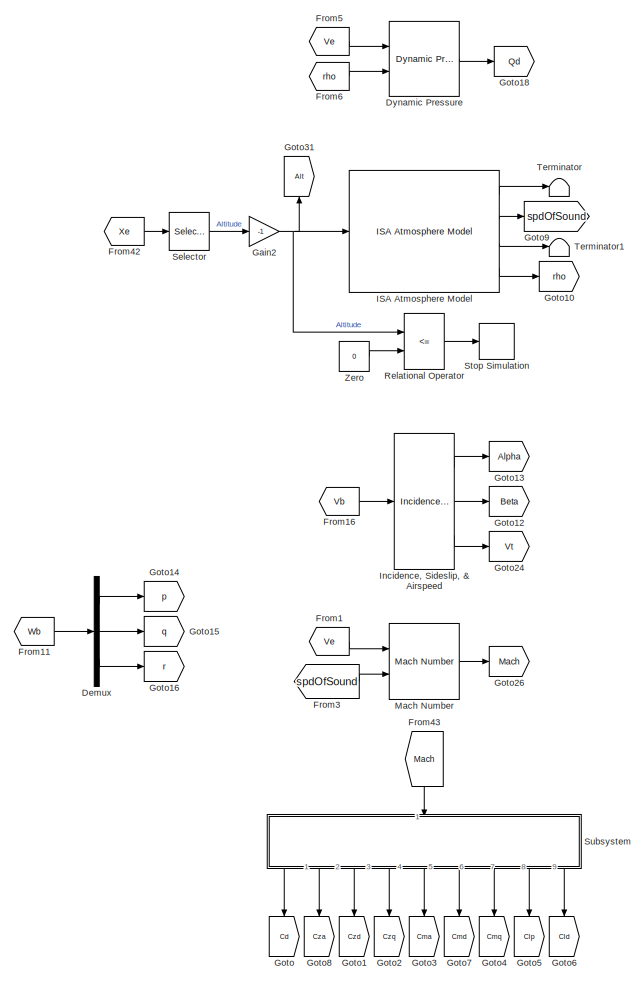
[diagram: root canvas - part 1/3, middle right region]
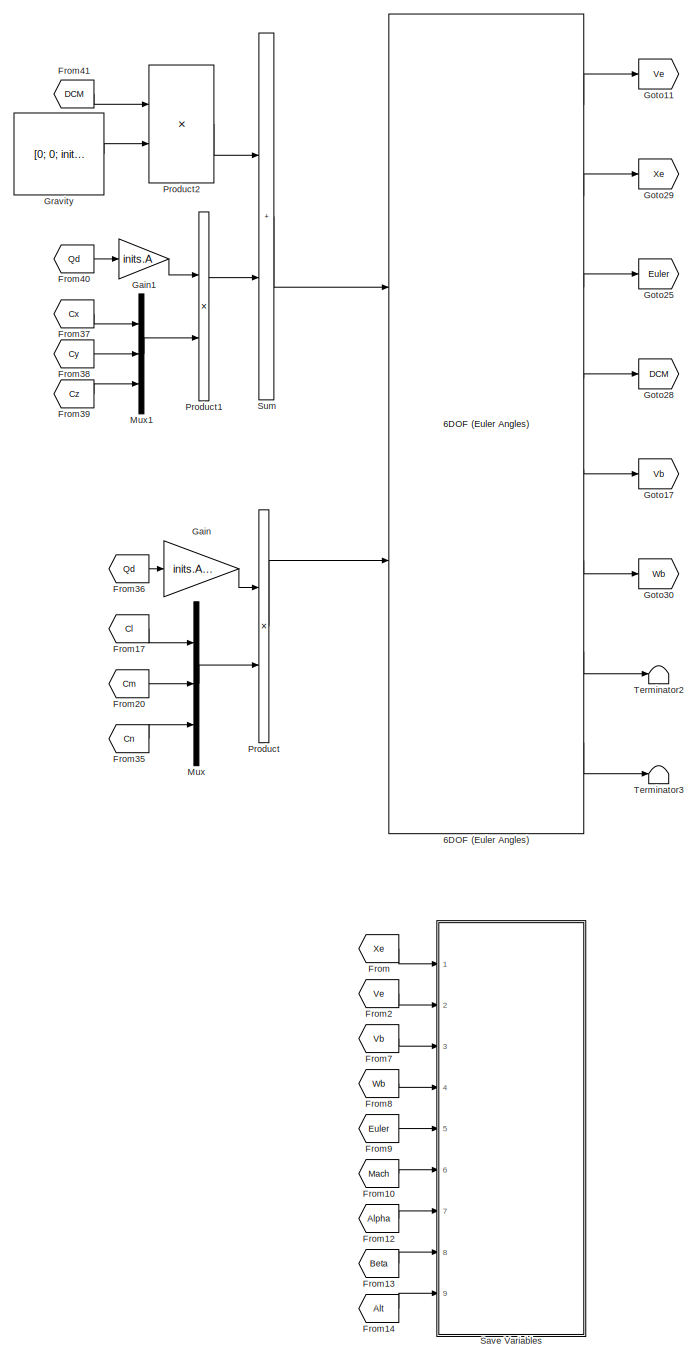
[diagram: root canvas - part 2/3, center side, full height]
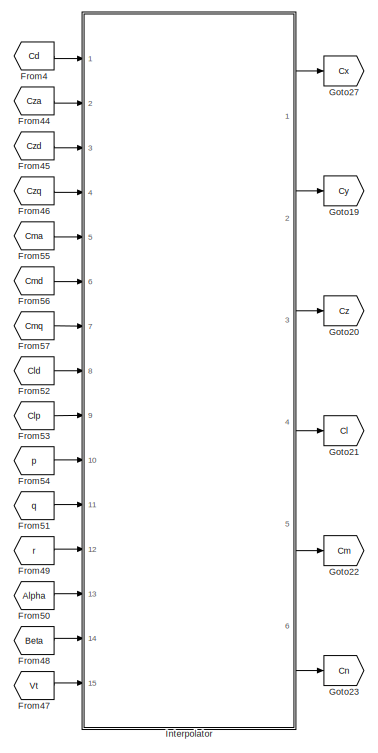
[diagram: root canvas - part 3/3, middle left region]
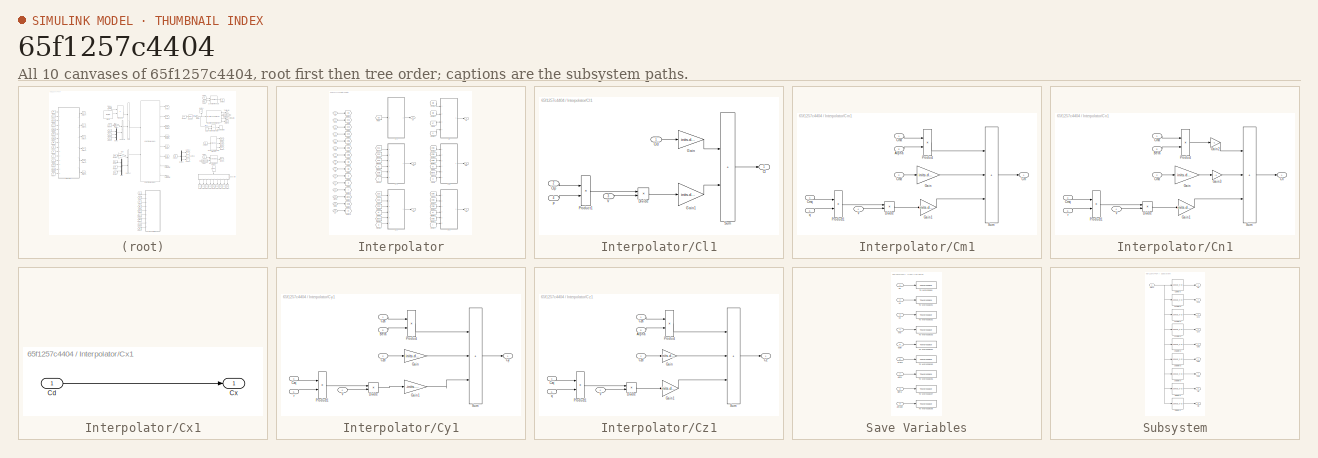
[diagram: thumbnail index - all 10 canvases of the model, root first then tree order]
MODEL slx_65f1257c4404
KIND model
CONFIG AbsTol = auto
CONFIG EnableMultiTasking = off
CONFIG FixedStep = inits.dt
CONFIG MaxStep = auto
CONFIG MinStep = auto
CONFIG RelTol = 1e-3
CONFIG SampleTimeConstraint = Unconstrained
CONFIG SolverName = FixedStepAuto
CONFIG StartTime = 0
CONFIG StopTime = inf
BLOCK [Reference] 6DOF (Euler Angles)  REF=shared6dof/6DOF (Euler Angles)
  Ports = [2, 8]
  SourceBlock = shared6dof/6DOF (Euler Angles)
  SourceProductBaseCode = AE,PW,DR,MT,UV,VE
  SourceType = 6DOF EoM (Body Axis)
BLOCK [Demux] Demux
  Outputs = 3,
  Ports = [1, 3]
BLOCK [Reference] Dynamic Pressure  REF=aerolibasang/Dynamic Pressure
  Ports = [2, 1]
  SourceBlock = aerolibasang/Dynamic Pressure
  SourceProductBaseCode = AE
  SourceType = Dynamic Pressure
BLOCK [From] From
  GotoTag = Xe
BLOCK [From] From1
  GotoTag = Ve
BLOCK [From] From10
  GotoTag = Mach
BLOCK [From] From11
  GotoTag = Wb
BLOCK [From] From12
  GotoTag = Alpha
BLOCK [From] From13
  GotoTag = Beta
BLOCK [From] From14
  GotoTag = Alt
BLOCK [From] From16
  GotoTag = Vb
BLOCK [From] From17
  GotoTag = Cl
BLOCK [From] From2
  GotoTag = Ve
BLOCK [From] From20
  GotoTag = Cm
BLOCK [From] From3
  GotoTag = spdOfSound
BLOCK [From] From35
  GotoTag = Cn
BLOCK [From] From36
  GotoTag = Qd
BLOCK [From] From37
  GotoTag = Cx
BLOCK [From] From38
  GotoTag = Cy
BLOCK [From] From39
  GotoTag = Cz
BLOCK [From] From4
  GotoTag = Cd
BLOCK [From] From40
  GotoTag = Qd
BLOCK [From] From41
  GotoTag = DCM
BLOCK [From] From42
  GotoTag = Xe
BLOCK [From] From43
  GotoTag = Mach
  NameLocation = left
BLOCK [From] From44
  GotoTag = Cza
BLOCK [From] From45
  GotoTag = Czd
BLOCK [From] From46
  GotoTag = Czq
BLOCK [From] From47
  GotoTag = Vt
BLOCK [From] From48
  GotoTag = Beta
BLOCK [From] From49
  GotoTag = r
BLOCK [From] From5
  GotoTag = Ve
BLOCK [From] From50
  GotoTag = Alpha
BLOCK [From] From51
  GotoTag = q
BLOCK [From] From52
  GotoTag = Cld
BLOCK [From] From53
  GotoTag = Clp
BLOCK [From] From54
  GotoTag = p
BLOCK [From] From55
  GotoTag = Cma
BLOCK [From] From56
  GotoTag = Cmd
BLOCK [From] From57
  GotoTag = Cmq
BLOCK [From] From6
  GotoTag = rho
BLOCK [From] From7
  GotoTag = Vb
BLOCK [From] From8
  GotoTag = Wb
BLOCK [From] From9
  GotoTag = Euler
BLOCK [Gain] Gain
  Gain = inits.A*inits.d
BLOCK [Gain] Gain1
  Gain = inits.A
BLOCK [Gain] Gain2
  Gain = -1
BLOCK [Goto] Goto
  GotoTag = Cd
  NameLocation = left
BLOCK [Goto] Goto1
  GotoTag = Czd
  NameLocation = left
BLOCK [Goto] Goto10
  GotoTag = rho
BLOCK [Goto] Goto11
  GotoTag = Ve
BLOCK [Goto] Goto12
  GotoTag = Beta
BLOCK [Goto] Goto13
  GotoTag = Alpha
BLOCK [Goto] Goto14
  GotoTag = p
BLOCK [Goto] Goto15
  GotoTag = q
BLOCK [Goto] Goto16
  GotoTag = r
BLOCK [Goto] Goto17
  GotoTag = Vb
BLOCK [Goto] Goto18
  GotoTag = Qd
BLOCK [Goto] Goto19
  GotoTag = Cy
BLOCK [Goto] Goto2
  GotoTag = Czq
  NameLocation = left
BLOCK [Goto] Goto20
  GotoTag = Cz
BLOCK [Goto] Goto21
  GotoTag = Cl
BLOCK [Goto] Goto22
  GotoTag = Cm
BLOCK [Goto] Goto23
  GotoTag = Cn
BLOCK [Goto] Goto24
  GotoTag = Vt
BLOCK [Goto] Goto25
  GotoTag = Euler
BLOCK [Goto] Goto26
  GotoTag = Mach
BLOCK [Goto] Goto27
  GotoTag = Cx
BLOCK [Goto] Goto28
  GotoTag = DCM
BLOCK [Goto] Goto29
  GotoTag = Xe
BLOCK [Goto] Goto3
  GotoTag = Cma
  NameLocation = left
BLOCK [Goto] Goto30
  GotoTag = Wb
BLOCK [Goto] Goto31
  GotoTag = Alt
  NameLocation = right
BLOCK [Goto] Goto4
  GotoTag = Cmq
  NameLocation = left
BLOCK [Goto] Goto5
  GotoTag = Clp
  NameLocation = left
BLOCK [Goto] Goto6
  GotoTag = Cld
  NameLocation = left
BLOCK [Goto] Goto7
  GotoTag = Cmd
  NameLocation = left
BLOCK [Goto] Goto8
  GotoTag = Cza
  NameLocation = left
BLOCK [Goto] Goto9
  GotoTag = spdOfSound
BLOCK [Constant] Gravity
  Value = [0; 0; inits.g*inits.m]
  VectorParams1D = off
BLOCK [Reference] ISA Atmosphere Model  REF=aerolibatmos2/ISA Atmosphere Model
  Ports = [1, 4]
  SourceBlock = aerolibatmos2/ISA Atmosphere Model
  SourceProductBaseCode = AE
  SourceType = International Standard Atmosphere Model
BLOCK [Reference] Incidence, Sideslip, & Airspeed  REF=aerolibasang/Incidence, Sideslip,
& Airspeed
  Ports = [1, 3]
  SourceBlock = aerolibasang/Incidence, Sideslip,\n& Airspeed
  SourceProductBaseCode = AE
  SourceType = Incidence,Sideslip,&Airspeed
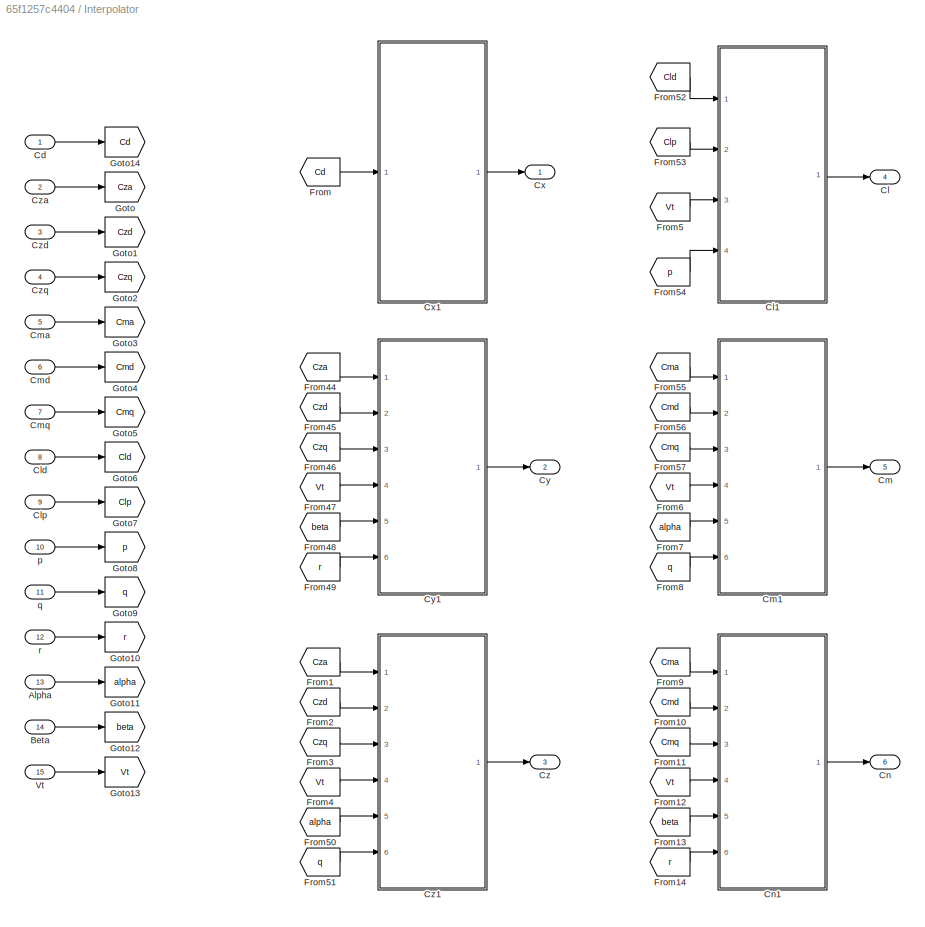
BLOCK [SubSystem] Interpolator
  Ports = [15, 6]
  RequestExecContextInheritance = off
BLOCK [Inport] Interpolator/Alpha
  Port = 13
BLOCK [Inport] Interpolator/Beta
  Port = 14
BLOCK [Inport] Interpolator/Cd
BLOCK [Outport] Interpolator/Cl
  Port = 4
BLOCK [SubSystem] Interpolator/Cl1
  Ports = [4, 1]
  RequestExecContextInheritance = off
BLOCK [Outport] Interpolator/Cl1/Cl
BLOCK [Inport] Interpolator/Cl1/Cld
BLOCK [Inport] Interpolator/Cl1/Clp
  Port = 2
BLOCK [Product] Interpolator/Cl1/Divide
  Inputs = */
  Ports = [2, 1]
BLOCK [Gain] Interpolator/Cl1/Gain
  Gain = inits.def_da
BLOCK [Gain] Interpolator/Cl1/Gain1
  Gain = inits.d/2
BLOCK [Product] Interpolator/Cl1/Product1
  Ports = [2, 1]
BLOCK [Sum] Interpolator/Cl1/Sum
  IconShape = rectangular
  Ports = [2, 1]
BLOCK [Inport] Interpolator/Cl1/V
  Port = 3
BLOCK [Inport] Interpolator/Cl1/p
  Port = 4
BLOCK [Inport] Interpolator/Cld
  Port = 8
BLOCK [Inport] Interpolator/Clp
  Port = 9
BLOCK [Outport] Interpolator/Cm
  Port = 5
BLOCK [SubSystem] Interpolator/Cm1
  Ports = [6, 1]
  RequestExecContextInheritance = off
BLOCK [Inport] Interpolator/Cm1/Alpha
  Port = 5
BLOCK [Outport] Interpolator/Cm1/Cm
BLOCK [Inport] Interpolator/Cm1/Cma
BLOCK [Inport] Interpolator/Cm1/Cmd
  Port = 2
BLOCK [Inport] Interpolator/Cm1/Cmq
  Port = 3
BLOCK [Product] Interpolator/Cm1/Divide
  Inputs = */
  Ports = [2, 1]
BLOCK [Gain] Interpolator/Cm1/Gain
  Gain = inits.def_de
BLOCK [Gain] Interpolator/Cm1/Gain1
  Gain = inits.d/2
BLOCK [Product] Interpolator/Cm1/Product
  Ports = [2, 1]
BLOCK [Product] Interpolator/Cm1/Product1
  Ports = [2, 1]
BLOCK [Sum] Interpolator/Cm1/Sum
  IconShape = rectangular
  Inputs = +++
  Ports = [3, 1]
BLOCK [Inport] Interpolator/Cm1/V
  Port = 4
BLOCK [Inport] Interpolator/Cm1/q
  Port = 6
BLOCK [Inport] Interpolator/Cma
  Port = 5
BLOCK [Inport] Interpolator/Cmd
  Port = 6
BLOCK [Inport] Interpolator/Cmq
  Port = 7
BLOCK [Outport] Interpolator/Cn
  Port = 6
BLOCK [SubSystem] Interpolator/Cn1
  Ports = [6, 1]
  RequestExecContextInheritance = off
BLOCK [Inport] Interpolator/Cn1/Beta
  Port = 5
BLOCK [Inport] Interpolator/Cn1/Cma
BLOCK [Inport] Interpolator/Cn1/Cmd
  Port = 2
BLOCK [Inport] Interpolator/Cn1/Cmq
  Port = 3
BLOCK [Outport] Interpolator/Cn1/Cn
BLOCK [Product] Interpolator/Cn1/Divide
  Inputs = */
  Ports = [2, 1]
BLOCK [Gain] Interpolator/Cn1/Gain
  Gain = inits.def_dr
BLOCK [Gain] Interpolator/Cn1/Gain1
  Gain = inits.d/2
BLOCK [Gain] Interpolator/Cn1/Gain2
  Gain = -1
BLOCK [Gain] Interpolator/Cn1/Gain3
  Gain = -1
BLOCK [Product] Interpolator/Cn1/Product
  Ports = [2, 1]
BLOCK [Product] Interpolator/Cn1/Product1
  Ports = [2, 1]
BLOCK [Sum] Interpolator/Cn1/Sum
  IconShape = rectangular
  Inputs = +++
  Ports = [3, 1]
BLOCK [Inport] Interpolator/Cn1/V
  Port = 4
BLOCK [Inport] Interpolator/Cn1/r
  Port = 6
BLOCK [Outport] Interpolator/Cx
BLOCK [SubSystem] Interpolator/Cx1
  Ports = [1, 1]
  RequestExecContextInheritance = off
BLOCK [Inport] Interpolator/Cx1/Cd
BLOCK [Outport] Interpolator/Cx1/Cx
BLOCK [Outport] Interpolator/Cy
  Port = 2
BLOCK [SubSystem] Interpolator/Cy1
  Ports = [6, 1]
  RequestExecContextInheritance = off
BLOCK [Inport] Interpolator/Cy1/Beta
  Port = 5
BLOCK [Outport] Interpolator/Cy1/Cy
BLOCK [Inport] Interpolator/Cy1/Cza
BLOCK [Inport] Interpolator/Cy1/Czd
  Port = 2
BLOCK [Inport] Interpolator/Cy1/Czq
  Port = 3
BLOCK [Product] Interpolator/Cy1/Divide
  Inputs = */
  Ports = [2, 1]
BLOCK [Gain] Interpolator/Cy1/Gain
  Gain = inits.def_dr
BLOCK [Gain] Interpolator/Cy1/Gain1
  Gain = -inits.d/2
BLOCK [Product] Interpolator/Cy1/Product
  Ports = [2, 1]
BLOCK [Product] Interpolator/Cy1/Product1
  Ports = [2, 1]
BLOCK [Sum] Interpolator/Cy1/Sum
  IconShape = rectangular
  Inputs = +++
  Ports = [3, 1]
BLOCK [Inport] Interpolator/Cy1/V
  Port = 4
BLOCK [Inport] Interpolator/Cy1/r
  Port = 6
BLOCK [Outport] Interpolator/Cz
  Port = 3
BLOCK [SubSystem] Interpolator/Cz1
  Ports = [6, 1]
  RequestExecContextInheritance = off
BLOCK [Inport] Interpolator/Cz1/Alpha
  Port = 5
BLOCK [Outport] Interpolator/Cz1/Cz
BLOCK [Inport] Interpolator/Cz1/Cza
BLOCK [Inport] Interpolator/Cz1/Czd
  Port = 2
BLOCK [Inport] Interpolator/Cz1/Czq
  Port = 3
BLOCK [Product] Interpolator/Cz1/Divide
  Inputs = */
  Ports = [2, 1]
BLOCK [Gain] Interpolator/Cz1/Gain
  Gain = inits.def_de
BLOCK [Gain] Interpolator/Cz1/Gain1
  Gain = inits.d/2
BLOCK [Product] Interpolator/Cz1/Product
  Ports = [2, 1]
BLOCK [Product] Interpolator/Cz1/Product1
  Ports = [2, 1]
BLOCK [Sum] Interpolator/Cz1/Sum
  IconShape = rectangular
  Inputs = +++
  Ports = [3, 1]
BLOCK [Inport] Interpolator/Cz1/V
  Port = 4
BLOCK [Inport] Interpolator/Cz1/q
  Port = 6
BLOCK [Inport] Interpolator/Cza
  Port = 2
BLOCK [Inport] Interpolator/Czd
  Port = 3
BLOCK [Inport] Interpolator/Czq
  Port = 4
BLOCK [From] Interpolator/From
  GotoTag = Cd
BLOCK [From] Interpolator/From1
  GotoTag = Cza
BLOCK [From] Interpolator/From10
  GotoTag = Cmd
BLOCK [From] Interpolator/From11
  GotoTag = Cmq
BLOCK [From] Interpolator/From12
  GotoTag = Vt
BLOCK [From] Interpolator/From13
  GotoTag = beta
BLOCK [From] Interpolator/From14
  GotoTag = r
BLOCK [From] Interpolator/From2
  GotoTag = Czd
BLOCK [From] Interpolator/From3
  GotoTag = Czq
BLOCK [From] Interpolator/From4
  GotoTag = Vt
BLOCK [From] Interpolator/From44
  GotoTag = Cza
BLOCK [From] Interpolator/From45
  GotoTag = Czd
BLOCK [From] Interpolator/From46
  GotoTag = Czq
BLOCK [From] Interpolator/From47
  GotoTag = Vt
BLOCK [From] Interpolator/From48
  GotoTag = beta
BLOCK [From] Interpolator/From49
  GotoTag = r
BLOCK [From] Interpolator/From5
  GotoTag = Vt
BLOCK [From] Interpolator/From50
  GotoTag = alpha
BLOCK [From] Interpolator/From51
  GotoTag = q
BLOCK [From] Interpolator/From52
  GotoTag = Cld
BLOCK [From] Interpolator/From53
  GotoTag = Clp
BLOCK [From] Interpolator/From54
  GotoTag = p
BLOCK [From] Interpolator/From55
  GotoTag = Cma
BLOCK [From] Interpolator/From56
  GotoTag = Cmd
BLOCK [From] Interpolator/From57
  GotoTag = Cmq
BLOCK [From] Interpolator/From6
  GotoTag = Vt
BLOCK [From] Interpolator/From7
  GotoTag = alpha
BLOCK [From] Interpolator/From8
  GotoTag = q
BLOCK [From] Interpolator/From9
  GotoTag = Cma
BLOCK [Goto] Interpolator/Goto
  GotoTag = Cza
BLOCK [Goto] Interpolator/Goto1
  GotoTag = Czd
BLOCK [Goto] Interpolator/Goto10
  GotoTag = r
BLOCK [Goto] Interpolator/Goto11
  GotoTag = alpha
BLOCK [Goto] Interpolator/Goto12
  GotoTag = beta
BLOCK [Goto] Interpolator/Goto13
  GotoTag = Vt
BLOCK [Goto] Interpolator/Goto14
  GotoTag = Cd
BLOCK [Goto] Interpolator/Goto2
  GotoTag = Czq
BLOCK [Goto] Interpolator/Goto3
  GotoTag = Cma
BLOCK [Goto] Interpolator/Goto4
  GotoTag = Cmd
BLOCK [Goto] Interpolator/Goto5
  GotoTag = Cmq
BLOCK [Goto] Interpolator/Goto6
  GotoTag = Cld
BLOCK [Goto] Interpolator/Goto7
  GotoTag = Clp
BLOCK [Goto] Interpolator/Goto8
  GotoTag = p
BLOCK [Goto] Interpolator/Goto9
  GotoTag = q
BLOCK [Inport] Interpolator/Vt
  Port = 15
BLOCK [Inport] Interpolator/p
  Port = 10
BLOCK [Inport] Interpolator/q
  Port = 11
BLOCK [Inport] Interpolator/r
  Port = 12
BLOCK [Reference] Mach Number  REF=aerolibasang/Mach Number
  Ports = [2, 1]
  SourceBlock = aerolibasang/Mach Number
  SourceProductBaseCode = AE
  SourceType = Mach Number
BLOCK [Mux] Mux
  DisplayOption = bar
  Inputs = 3
  Ports = [3, 1]
BLOCK [Mux] Mux1
  DisplayOption = bar
  Inputs = 3
  Ports = [3, 1]
BLOCK [Product] Product
  Ports = [2, 1]
BLOCK [Product] Product1
  Ports = [2, 1]
BLOCK [Product] Product2
  Multiplication = Matrix(*)
  Ports = [2, 1]
BLOCK [RelationalOperator] Relational Operator
  InputSameDT = off
  Operator = <=
  OutDataTypeStr = boolean
  Ports = [2, 1]
  RndMeth = Simplest
BLOCK [SubSystem] Save Variables
  Ports = [9]
  RequestExecContextInheritance = off
BLOCK [Inport] Save Variables/Alpha
  Port = 7
BLOCK [Inport] Save Variables/Altitude
  Port = 9
BLOCK [Inport] Save Variables/Beta
  Port = 8
BLOCK [Inport] Save Variables/Euler
  Port = 5
BLOCK [Inport] Save Variables/Mach
  Port = 6
BLOCK [ToWorkspace] Save Variables/To Workspace
  FixptAsFi = on
  MaxDataPoints = inf
  Ports = [1]
  SampleTime = -1
  VariableName = Xe
BLOCK [ToWorkspace] Save Variables/To Workspace1
  FixptAsFi = on
  MaxDataPoints = inf
  Ports = [1]
  SampleTime = -1
  VariableName = Ve
BLOCK [ToWorkspace] Save Variables/To Workspace2
  FixptAsFi = on
  MaxDataPoints = inf
  Ports = [1]
  SampleTime = -1
  VariableName = Vb
BLOCK [ToWorkspace] Save Variables/To Workspace3
  FixptAsFi = on
  MaxDataPoints = inf
  Ports = [1]
  SampleTime = -1
  VariableName = Wb
BLOCK [ToWorkspace] Save Variables/To Workspace4
  FixptAsFi = on
  MaxDataPoints = inf
  Ports = [1]
  SampleTime = -1
  VariableName = Euler
BLOCK [ToWorkspace] Save Variables/To Workspace5
  FixptAsFi = on
  MaxDataPoints = inf
  Ports = [1]
  SampleTime = -1
  VariableName = Mach
BLOCK [ToWorkspace] Save Variables/To Workspace6
  FixptAsFi = on
  MaxDataPoints = inf
  Ports = [1]
  SampleTime = -1
  VariableName = alpha
BLOCK [ToWorkspace] Save Variables/To Workspace7
  FixptAsFi = on
  MaxDataPoints = inf
  Ports = [1]
  SampleTime = -1
  VariableName = beta
BLOCK [ToWorkspace] Save Variables/To Workspace8
  FixptAsFi = on
  MaxDataPoints = inf
  Ports = [1]
  SampleTime = -1
  VariableName = altitude
BLOCK [Inport] Save Variables/Vb
  Port = 3
BLOCK [Inport] Save Variables/Ve
  Port = 2
BLOCK [Inport] Save Variables/Wb
  Port = 4
BLOCK [Inport] Save Variables/Xe
BLOCK [Selector] Selector
  IndexOptions = Index vector (dialog)
  Indices = 3
  InputPortWidth = 3
  OutputSizes = 1
  Ports = [1, 1]
BLOCK [Stop] Stop Simulation
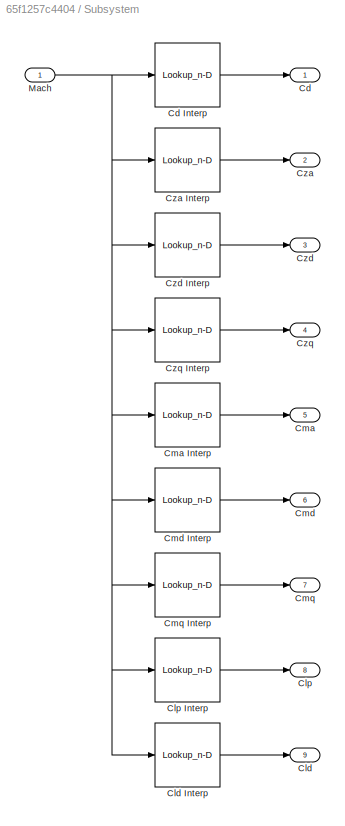
BLOCK [SubSystem] Subsystem
  NameLocation = left
  Ports = [1, 9]
  RequestExecContextInheritance = off
BLOCK [Outport] Subsystem/Cd
BLOCK [Lookup_n-D] Subsystem/Cd Interp
  BreakpointsForDimension1 = inits.Machpoints
  InputPortMap = u0
  InternalRulePriority = Speed
  NumberOfTableDimensions = 1
  Ports = [1, 1]
  RndMeth = Simplest
  Table = inits.Cd_data
BLOCK [Outport] Subsystem/Cld
  Port = 9
BLOCK [Lookup_n-D] Subsystem/Cld Interp
  BreakpointsForDimension1 = inits.Machpoints
  InputPortMap = u0
  InternalRulePriority = Speed
  NumberOfTableDimensions = 1
  Ports = [1, 1]
  RndMeth = Simplest
  Table = inits.Cld_data
BLOCK [Outport] Subsystem/Clp
  Port = 8
BLOCK [Lookup_n-D] Subsystem/Clp Interp
  BreakpointsForDimension1 = inits.Machpoints
  InputPortMap = u0
  InternalRulePriority = Speed
  NumberOfTableDimensions = 1
  Ports = [1, 1]
  RndMeth = Simplest
  Table = inits.Clp_data
BLOCK [Outport] Subsystem/Cma
  Port = 5
BLOCK [Lookup_n-D] Subsystem/Cma Interp
  BreakpointsForDimension1 = inits.Machpoints
  InputPortMap = u0
  InternalRulePriority = Speed
  NumberOfTableDimensions = 1
  Ports = [1, 1]
  RndMeth = Simplest
  Table = inits.Cma_data
BLOCK [Outport] Subsystem/Cmd
  Port = 6
BLOCK [Lookup_n-D] Subsystem/Cmd Interp
  BreakpointsForDimension1 = inits.Machpoints
  InputPortMap = u0
  InternalRulePriority = Speed
  NumberOfTableDimensions = 1
  Ports = [1, 1]
  RndMeth = Simplest
  Table = inits.Cmd_data
BLOCK [Outport] Subsystem/Cmq
  Port = 7
BLOCK [Lookup_n-D] Subsystem/Cmq Interp
  BreakpointsForDimension1 = inits.Machpoints
  InputPortMap = u0
  InternalRulePriority = Speed
  NumberOfTableDimensions = 1
  Ports = [1, 1]
  RndMeth = Simplest
  Table = inits.Cmq_data
BLOCK [Outport] Subsystem/Cza
  Port = 2
BLOCK [Lookup_n-D] Subsystem/Cza Interp
  BreakpointsForDimension1 = inits.Machpoints
  InputPortMap = u0
  InternalRulePriority = Speed
  NumberOfTableDimensions = 1
  Ports = [1, 1]
  RndMeth = Simplest
  Table = inits.Cza_data
BLOCK [Outport] Subsystem/Czd
  Port = 3
BLOCK [Lookup_n-D] Subsystem/Czd Interp
  BreakpointsForDimension1 = inits.Machpoints
  InputPortMap = u0
  InternalRulePriority = Speed
  NumberOfTableDimensions = 1
  Ports = [1, 1]
  RndMeth = Simplest
  Table = inits.Czd_data
BLOCK [Outport] Subsystem/Czq
  Port = 4
BLOCK [Lookup_n-D] Subsystem/Czq Interp
  BreakpointsForDimension1 = inits.Machpoints
  InputPortMap = u0
  InternalRulePriority = Speed
  NumberOfTableDimensions = 1
  Ports = [1, 1]
  RndMeth = Simplest
  Table = inits.Czq_data
BLOCK [Inport] Subsystem/Mach
BLOCK [Sum] Sum
  IconShape = rectangular
  Ports = [2, 1]
BLOCK [Terminator] Terminator
BLOCK [Terminator] Terminator1
BLOCK [Terminator] Terminator2
BLOCK [Terminator] Terminator3
BLOCK [Constant] Zero
  OutDataTypeStr = Inherit: Inherit via back propagation
  Value = 0
LINE 6DOF (Euler Angles):1 -> Goto11:1
LINE 6DOF (Euler Angles):2 -> Goto29:1
LINE 6DOF (Euler Angles):3 -> Goto25:1
LINE 6DOF (Euler Angles):4 -> Goto28:1
LINE 6DOF (Euler Angles):5 -> Goto17:1
LINE 6DOF (Euler Angles):6 -> Goto30:1
LINE 6DOF (Euler Angles):7 -> Terminator2:1
LINE 6DOF (Euler Angles):8 -> Terminator3:1
LINE Demux:1 -> Goto14:1
LINE Demux:2 -> Goto15:1
LINE Demux:3 -> Goto16:1
LINE Dynamic Pressure:1 -> Goto18:1
LINE From10:1 -> Save Variables:6
LINE From11:1 -> Demux:1
LINE From12:1 -> Save Variables:7
LINE From13:1 -> Save Variables:8
LINE From14:1 -> Save Variables:9
LINE From16:1 -> Incidence, Sideslip, & Airspeed:1
LINE From17:1 -> Mux:1
LINE From1:1 -> Mach Number:1
LINE From20:1 -> Mux:2
LINE From2:1 -> Save Variables:2
LINE From35:1 -> Mux:3
LINE From36:1 -> Gain:1
LINE From37:1 -> Mux1:1
LINE From38:1 -> Mux1:2
LINE From39:1 -> Mux1:3
LINE From3:1 -> Mach Number:2
LINE From40:1 -> Gain1:1
LINE From41:1 -> Product2:1
LINE From42:1 -> Selector:1
LINE From43:1 -> Subsystem:1
LINE From44:1 -> Interpolator:2
LINE From45:1 -> Interpolator:3
LINE From46:1 -> Interpolator:4
LINE From47:1 -> Interpolator:15
LINE From48:1 -> Interpolator:14
LINE From49:1 -> Interpolator:12
LINE From4:1 -> Interpolator:1
LINE From50:1 -> Interpolator:13
LINE From51:1 -> Interpolator:11
LINE From52:1 -> Interpolator:8
LINE From53:1 -> Interpolator:9
LINE From54:1 -> Interpolator:10
LINE From55:1 -> Interpolator:5
LINE From56:1 -> Interpolator:6
LINE From57:1 -> Interpolator:7
LINE From5:1 -> Dynamic Pressure:1
LINE From6:1 -> Dynamic Pressure:2
LINE From7:1 -> Save Variables:3
LINE From8:1 -> Save Variables:4
LINE From9:1 -> Save Variables:5
LINE From:1 -> Save Variables:1
LINE Gain1:1 -> Product1:1
NET Gain2:1 -> Goto31:1, ISA Atmosphere Model:1, Relational Operator:1
LINE Gain:1 -> Product:1
LINE Gravity:1 -> Product2:2
LINE ISA Atmosphere Model:1 -> Terminator:1
LINE ISA Atmosphere Model:2 -> Goto9:1
LINE ISA Atmosphere Model:3 -> Terminator1:1
LINE ISA Atmosphere Model:4 -> Goto10:1
LINE Incidence, Sideslip, & Airspeed:1 -> Goto13:1
LINE Incidence, Sideslip, & Airspeed:2 -> Goto12:1
LINE Incidence, Sideslip, & Airspeed:3 -> Goto24:1
LINE Interpolator/Alpha:1 -> Interpolator/Goto11:1
LINE Interpolator/Beta:1 -> Interpolator/Goto12:1
LINE Interpolator/Cd:1 -> Interpolator/Goto14:1
LINE Interpolator/Cl1/Cld:1 -> Interpolator/Cl1/Gain:1
LINE Interpolator/Cl1/Clp:1 -> Interpolator/Cl1/Product1:1
LINE Interpolator/Cl1/Divide:1 -> Interpolator/Cl1/Gain1:1
LINE Interpolator/Cl1/Gain1:1 -> Interpolator/Cl1/Sum:2
LINE Interpolator/Cl1/Gain:1 -> Interpolator/Cl1/Sum:1
LINE Interpolator/Cl1/Product1:1 -> Interpolator/Cl1/Divide:1
LINE Interpolator/Cl1/Sum:1 -> Interpolator/Cl1/Cl:1
LINE Interpolator/Cl1/V:1 -> Interpolator/Cl1/Divide:2
LINE Interpolator/Cl1/p:1 -> Interpolator/Cl1/Product1:2
LINE Interpolator/Cl1:1 -> Interpolator/Cl:1
LINE Interpolator/Cld:1 -> Interpolator/Goto6:1
LINE Interpolator/Clp:1 -> Interpolator/Goto7:1
LINE Interpolator/Cm1/Alpha:1 -> Interpolator/Cm1/Product:2
LINE Interpolator/Cm1/Cma:1 -> Interpolator/Cm1/Product:1
LINE Interpolator/Cm1/Cmd:1 -> Interpolator/Cm1/Gain:1
LINE Interpolator/Cm1/Cmq:1 -> Interpolator/Cm1/Product1:1
LINE Interpolator/Cm1/Divide:1 -> Interpolator/Cm1/Gain1:1
LINE Interpolator/Cm1/Gain1:1 -> Interpolator/Cm1/Sum:3
LINE Interpolator/Cm1/Gain:1 -> Interpolator/Cm1/Sum:2
LINE Interpolator/Cm1/Product1:1 -> Interpolator/Cm1/Divide:1
LINE Interpolator/Cm1/Product:1 -> Interpolator/Cm1/Sum:1
LINE Interpolator/Cm1/Sum:1 -> Interpolator/Cm1/Cm:1
LINE Interpolator/Cm1/V:1 -> Interpolator/Cm1/Divide:2
LINE Interpolator/Cm1/q:1 -> Interpolator/Cm1/Product1:2
LINE Interpolator/Cm1:1 -> Interpolator/Cm:1
LINE Interpolator/Cma:1 -> Interpolator/Goto3:1
LINE Interpolator/Cmd:1 -> Interpolator/Goto4:1
LINE Interpolator/Cmq:1 -> Interpolator/Goto5:1
LINE Interpolator/Cn1/Beta:1 -> Interpolator/Cn1/Product:2
LINE Interpolator/Cn1/Cma:1 -> Interpolator/Cn1/Product:1
LINE Interpolator/Cn1/Cmd:1 -> Interpolator/Cn1/Gain:1
LINE Interpolator/Cn1/Cmq:1 -> Interpolator/Cn1/Product1:1
LINE Interpolator/Cn1/Divide:1 -> Interpolator/Cn1/Gain1:1
LINE Interpolator/Cn1/Gain1:1 -> Interpolator/Cn1/Sum:3
LINE Interpolator/Cn1/Gain2:1 -> Interpolator/Cn1/Sum:1
LINE Interpolator/Cn1/Gain3:1 -> Interpolator/Cn1/Sum:2
LINE Interpolator/Cn1/Gain:1 -> Interpolator/Cn1/Gain3:1
LINE Interpolator/Cn1/Product1:1 -> Interpolator/Cn1/Divide:1
LINE Interpolator/Cn1/Product:1 -> Interpolator/Cn1/Gain2:1
LINE Interpolator/Cn1/Sum:1 -> Interpolator/Cn1/Cn:1
LINE Interpolator/Cn1/V:1 -> Interpolator/Cn1/Divide:2
LINE Interpolator/Cn1/r:1 -> Interpolator/Cn1/Product1:2
LINE Interpolator/Cn1:1 -> Interpolator/Cn:1
LINE Interpolator/Cx1/Cd:1 -> Interpolator/Cx1/Cx:1
LINE Interpolator/Cx1:1 -> Interpolator/Cx:1
LINE Interpolator/Cy1/Beta:1 -> Interpolator/Cy1/Product:2
LINE Interpolator/Cy1/Cza:1 -> Interpolator/Cy1/Product:1
LINE Interpolator/Cy1/Czd:1 -> Interpolator/Cy1/Gain:1
LINE Interpolator/Cy1/Czq:1 -> Interpolator/Cy1/Product1:1
LINE Interpolator/Cy1/Divide:1 -> Interpolator/Cy1/Gain1:1
LINE Interpolator/Cy1/Gain1:1 -> Interpolator/Cy1/Sum:3
LINE Interpolator/Cy1/Gain:1 -> Interpolator/Cy1/Sum:2
LINE Interpolator/Cy1/Product1:1 -> Interpolator/Cy1/Divide:1
LINE Interpolator/Cy1/Product:1 -> Interpolator/Cy1/Sum:1
LINE Interpolator/Cy1/Sum:1 -> Interpolator/Cy1/Cy:1
LINE Interpolator/Cy1/V:1 -> Interpolator/Cy1/Divide:2
LINE Interpolator/Cy1/r:1 -> Interpolator/Cy1/Product1:2
LINE Interpolator/Cy1:1 -> Interpolator/Cy:1
LINE Interpolator/Cz1/Alpha:1 -> Interpolator/Cz1/Product:2
LINE Interpolator/Cz1/Cza:1 -> Interpolator/Cz1/Product:1
LINE Interpolator/Cz1/Czd:1 -> Interpolator/Cz1/Gain:1
LINE Interpolator/Cz1/Czq:1 -> Interpolator/Cz1/Product1:1
LINE Interpolator/Cz1/Divide:1 -> Interpolator/Cz1/Gain1:1
LINE Interpolator/Cz1/Gain1:1 -> Interpolator/Cz1/Sum:3
LINE Interpolator/Cz1/Gain:1 -> Interpolator/Cz1/Sum:2
LINE Interpolator/Cz1/Product1:1 -> Interpolator/Cz1/Divide:1
LINE Interpolator/Cz1/Product:1 -> Interpolator/Cz1/Sum:1
LINE Interpolator/Cz1/Sum:1 -> Interpolator/Cz1/Cz:1
LINE Interpolator/Cz1/V:1 -> Interpolator/Cz1/Divide:2
LINE Interpolator/Cz1/q:1 -> Interpolator/Cz1/Product1:2
LINE Interpolator/Cz1:1 -> Interpolator/Cz:1
LINE Interpolator/Cza:1 -> Interpolator/Goto:1
LINE Interpolator/Czd:1 -> Interpolator/Goto1:1
LINE Interpolator/Czq:1 -> Interpolator/Goto2:1
LINE Interpolator/From10:1 -> Interpolator/Cn1:2
LINE Interpolator/From11:1 -> Interpolator/Cn1:3
LINE Interpolator/From12:1 -> Interpolator/Cn1:4
LINE Interpolator/From13:1 -> Interpolator/Cn1:5
LINE Interpolator/From14:1 -> Interpolator/Cn1:6
LINE Interpolator/From1:1 -> Interpolator/Cz1:1
LINE Interpolator/From2:1 -> Interpolator/Cz1:2
LINE Interpolator/From3:1 -> Interpolator/Cz1:3
LINE Interpolator/From44:1 -> Interpolator/Cy1:1
LINE Interpolator/From45:1 -> Interpolator/Cy1:2
LINE Interpolator/From46:1 -> Interpolator/Cy1:3
LINE Interpolator/From47:1 -> Interpolator/Cy1:4
LINE Interpolator/From48:1 -> Interpolator/Cy1:5
LINE Interpolator/From49:1 -> Interpolator/Cy1:6
LINE Interpolator/From4:1 -> Interpolator/Cz1:4
LINE Interpolator/From50:1 -> Interpolator/Cz1:5
LINE Interpolator/From51:1 -> Interpolator/Cz1:6
LINE Interpolator/From52:1 -> Interpolator/Cl1:1
LINE Interpolator/From53:1 -> Interpolator/Cl1:2
LINE Interpolator/From54:1 -> Interpolator/Cl1:4
LINE Interpolator/From55:1 -> Interpolator/Cm1:1
LINE Interpolator/From56:1 -> Interpolator/Cm1:2
LINE Interpolator/From57:1 -> Interpolator/Cm1:3
LINE Interpolator/From5:1 -> Interpolator/Cl1:3
LINE Interpolator/From6:1 -> Interpolator/Cm1:4
LINE Interpolator/From7:1 -> Interpolator/Cm1:5
LINE Interpolator/From8:1 -> Interpolator/Cm1:6
LINE Interpolator/From9:1 -> Interpolator/Cn1:1
LINE Interpolator/From:1 -> Interpolator/Cx1:1
LINE Interpolator/Vt:1 -> Interpolator/Goto13:1
LINE Interpolator/p:1 -> Interpolator/Goto8:1
LINE Interpolator/q:1 -> Interpolator/Goto9:1
LINE Interpolator/r:1 -> Interpolator/Goto10:1
LINE Interpolator:1 -> Goto27:1
LINE Interpolator:2 -> Goto19:1
LINE Interpolator:3 -> Goto20:1
LINE Interpolator:4 -> Goto21:1
LINE Interpolator:5 -> Goto22:1
LINE Interpolator:6 -> Goto23:1
LINE Mach Number:1 -> Goto26:1
LINE Mux1:1 -> Product1:2
LINE Mux:1 -> Product:2
LINE Product1:1 -> Sum:2
LINE Product2:1 -> Sum:1
LINE Product:1 -> 6DOF (Euler Angles):2
LINE Relational Operator:1 -> Stop Simulation:1
LINE Save Variables/Alpha:1 -> Save Variables/To Workspace6:1
LINE Save Variables/Altitude:1 -> Save Variables/To Workspace8:1
LINE Save Variables/Beta:1 -> Save Variables/To Workspace7:1
LINE Save Variables/Euler:1 -> Save Variables/To Workspace4:1
LINE Save Variables/Mach:1 -> Save Variables/To Workspace5:1
LINE Save Variables/Vb:1 -> Save Variables/To Workspace2:1
LINE Save Variables/Ve:1 -> Save Variables/To Workspace1:1
LINE Save Variables/Wb:1 -> Save Variables/To Workspace3:1
LINE Save Variables/Xe:1 -> Save Variables/To Workspace:1
LINE Selector:1 -> Gain2:1
LINE Subsystem/Cd Interp:1 -> Subsystem/Cd:1
LINE Subsystem/Cld Interp:1 -> Subsystem/Cld:1
LINE Subsystem/Clp Interp:1 -> Subsystem/Clp:1
LINE Subsystem/Cma Interp:1 -> Subsystem/Cma:1
LINE Subsystem/Cmd Interp:1 -> Subsystem/Cmd:1
LINE Subsystem/Cmq Interp:1 -> Subsystem/Cmq:1
LINE Subsystem/Cza Interp:1 -> Subsystem/Cza:1
LINE Subsystem/Czd Interp:1 -> Subsystem/Czd:1
LINE Subsystem/Czq Interp:1 -> Subsystem/Czq:1
NET Subsystem/Mach:1 -> Subsystem/Cd Interp:1, Subsystem/Cld Interp:1, Subsystem/Clp Interp:1, Subsystem/Cma Interp:1, Subsystem/Cmd Interp:1, Subsystem/Cmq Interp:1, Subsystem/Cza Interp:1, Subsystem/Czd Interp:1, Subsystem/Czq Interp:1
LINE Subsystem:1 -> Goto:1
LINE Subsystem:2 -> Goto8:1
LINE Subsystem:3 -> Goto1:1
LINE Subsystem:4 -> Goto2:1
LINE Subsystem:5 -> Goto3:1
LINE Subsystem:6 -> Goto7:1
LINE Subsystem:7 -> Goto4:1
LINE Subsystem:8 -> Goto5:1
LINE Subsystem:9 -> Goto6:1
LINE Sum:1 -> 6DOF (Euler Angles):1
LINE Zero:1 -> Relational Operator:2
note: NET lines group one-source signal fan-out (src -> all destinations, sorted); 1:1 wires keep LINE
